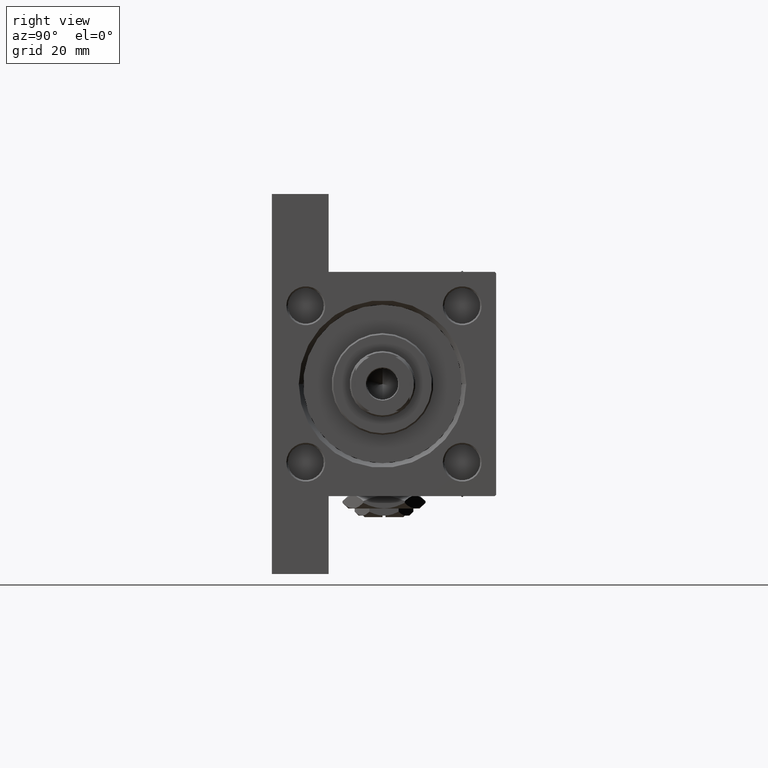
[diagram: clean part render]
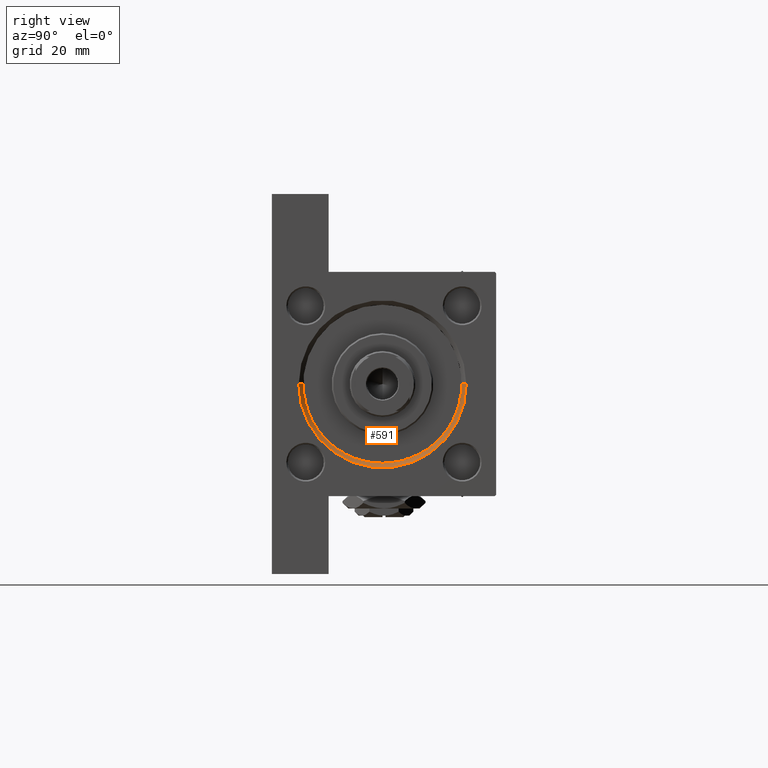
[diagram: same view with one face highlighted and labeled with its STEP entity id]
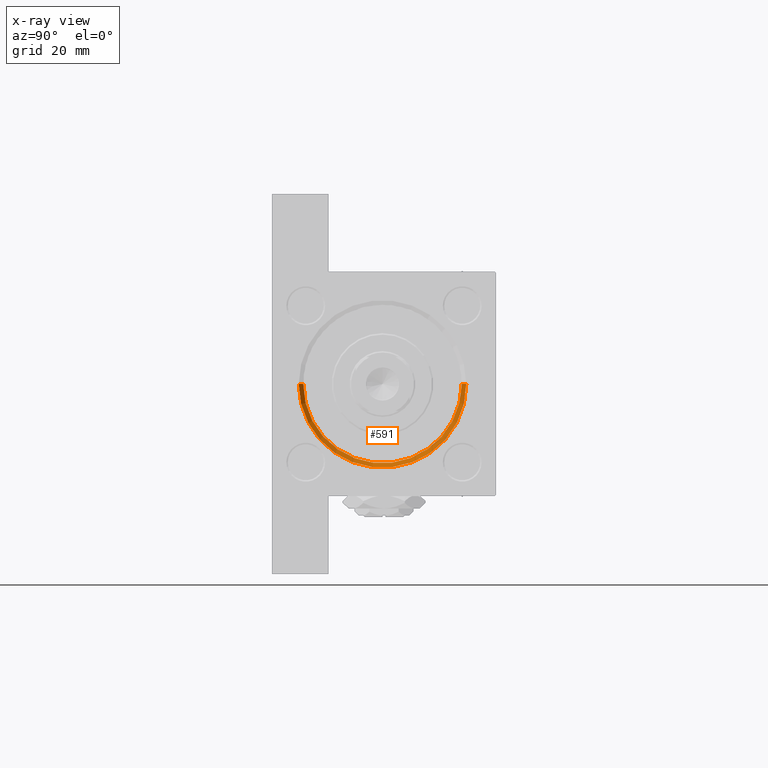
[diagram: x-ray of the same camera — body ghosted, the highlighted face saturated]
A machine part, right view. The second image highlights one B-rep face of the part: STEP entity #591.
The next image is the same camera in x-ray: the body ghosted, the highlighted face saturated — about 0% of this face is hidden behind the body in this view.
In plain terms, the highlighted conical surface has half-angle 45 deg.
Its self-contained STEP definition (entity closure, byte-faithful):
#74 = VERTEX_POINT ( 'NONE', #14249 ) ;
#591 = ADVANCED_FACE ( 'NONE', ( #44284 ), #31755, .F. ) ;
#2839 = AXIS2_PLACEMENT_3D ( 'NONE', #19500, #23525, #30588 ) ;
#3464 = VERTEX_POINT ( 'NONE', #5272 ) ;
#5272 = CARTESIAN_POINT ( 'NONE',  ( 152.5000000000000568, 3.245314017740486554E-15, 26.00000000000000355 ) ) ;
#9102 = EDGE_CURVE ( 'NONE', #74, #42655, #19199, .T. ) ;
#10050 = CIRCLE ( 'NONE', #15645, 27.99999999999999645 ) ;
#14249 = CARTESIAN_POINT ( 'NONE',  ( 152.5000000000000568, 0.000000000000000000, -27.00000000000000355 ) ) ;
#14638 = CARTESIAN_POINT ( 'NONE',  ( 152.5000000000000568, 3.245314017740486554E-15, 26.00000000000000355 ) ) ;
#14952 = DIRECTION ( 'NONE',  ( -1.000000000000000000, -0.000000000000000000, 0.000000000000000000 ) ) ;
#15173 = VECTOR ( 'NONE', #23462, 1000.000000000000114 ) ;
#15359 = ORIENTED_EDGE ( 'NONE', *, *, #23908, .F. ) ;
#15645 = AXIS2_PLACEMENT_3D ( 'NONE', #23347, #14952, #27369 ) ;
#18906 = DIRECTION ( 'NONE',  ( 0.7071067811865361374, 8.659560562355073374E-17, 0.7071067811865588970 ) ) ;
#19199 = LINE ( 'NONE', #31505, #15173 ) ;
#19500 = CARTESIAN_POINT ( 'NONE',  ( 152.5000000000000568, 0.000000000000000000, -0.5000000000000004441 ) ) ;
#23347 = CARTESIAN_POINT ( 'NONE',  ( 154.0000000000000000, 0.000000000000000000, -0.5000000000000004441 ) ) ;
#23456 = EDGE_CURVE ( 'NONE', #33391, #42655, #10050, .T. ) ;
#23462 = DIRECTION ( 'NONE',  ( 0.7071067811865361374, 0.000000000000000000, -0.7071067811865588970 ) ) ;
#23525 = DIRECTION ( 'NONE',  ( 1.000000000000000000, 0.000000000000000000, 0.000000000000000000 ) ) ;
#23908 = EDGE_CURVE ( 'NONE', #74, #3464, #33327, .T. ) ;
#24405 = VECTOR ( 'NONE', #18906, 1000.000000000000114 ) ;
#27154 = ORIENTED_EDGE ( 'NONE', *, *, #23456, .F. ) ;
#27369 = DIRECTION ( 'NONE',  ( 0.000000000000000000, 0.000000000000000000, 1.000000000000000000 ) ) ;
#27894 = EDGE_LOOP ( 'NONE', ( #39806, #15359, #33937, #27154 ) ) ;
#30588 = DIRECTION ( 'NONE',  ( 0.000000000000000000, 0.000000000000000000, 1.000000000000000000 ) ) ;
#31505 = CARTESIAN_POINT ( 'NONE',  ( 152.5000000000000568, 0.000000000000000000, -27.00000000000000355 ) ) ;
#31755 = CONICAL_SURFACE ( 'NONE', #37343, 26.50000000000000355, 0.7853981633974644883 ) ;
#31996 = DIRECTION ( 'NONE',  ( 1.000000000000000000, 0.000000000000000000, 0.000000000000000000 ) ) ;
#33327 = CIRCLE ( 'NONE', #2839, 26.50000000000000355 ) ;
#33391 = VERTEX_POINT ( 'NONE', #45064 ) ;
#33937 = ORIENTED_EDGE ( 'NONE', *, *, #9102, .T. ) ;
#34520 = EDGE_CURVE ( 'NONE', #3464, #33391, #41255, .T. ) ;
#35271 = CARTESIAN_POINT ( 'NONE',  ( 154.0000000000000000, 0.000000000000000000, -28.49999999999999645 ) ) ;
#35751 = DIRECTION ( 'NONE',  ( 0.000000000000000000, 0.000000000000000000, -1.000000000000000000 ) ) ;
#36490 = CARTESIAN_POINT ( 'NONE',  ( 152.5000000000000568, 0.000000000000000000, -0.5000000000000004441 ) ) ;
#37343 = AXIS2_PLACEMENT_3D ( 'NONE', #36490, #31996, #35751 ) ;
#39806 = ORIENTED_EDGE ( 'NONE', *, *, #34520, .F. ) ;
#41255 = LINE ( 'NONE', #14638, #24405 ) ;
#42655 = VERTEX_POINT ( 'NONE', #35271 ) ;
#44284 = FACE_OUTER_BOUND ( 'NONE', #27894, .T. ) ;
#45064 = CARTESIAN_POINT ( 'NONE',  ( 154.0000000000000000, 3.429011037612588881E-15, 27.49999999999999645 ) ) ;